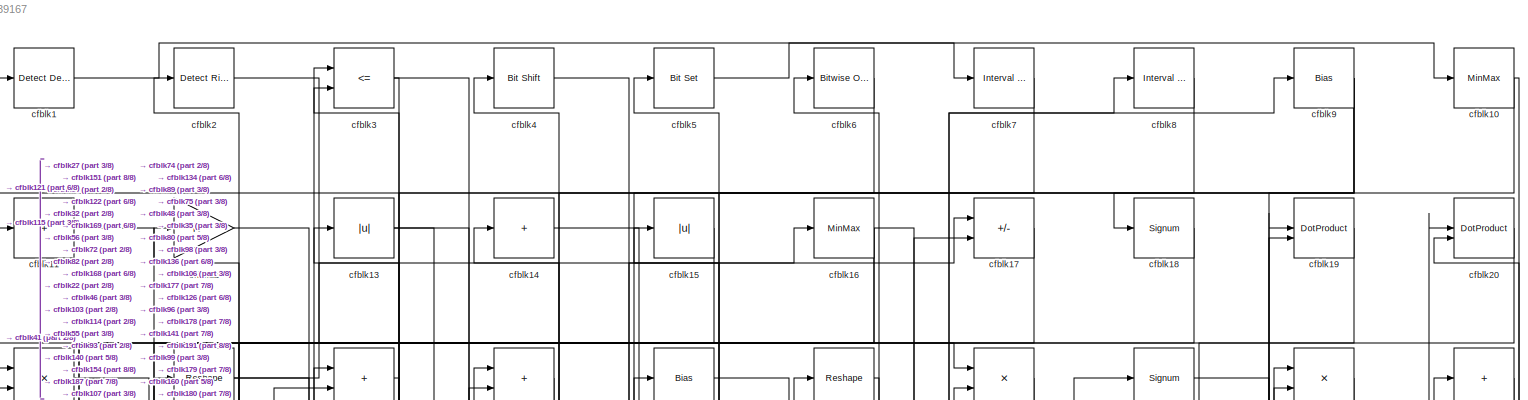
[diagram: root canvas - part 1/8, full width, top band]
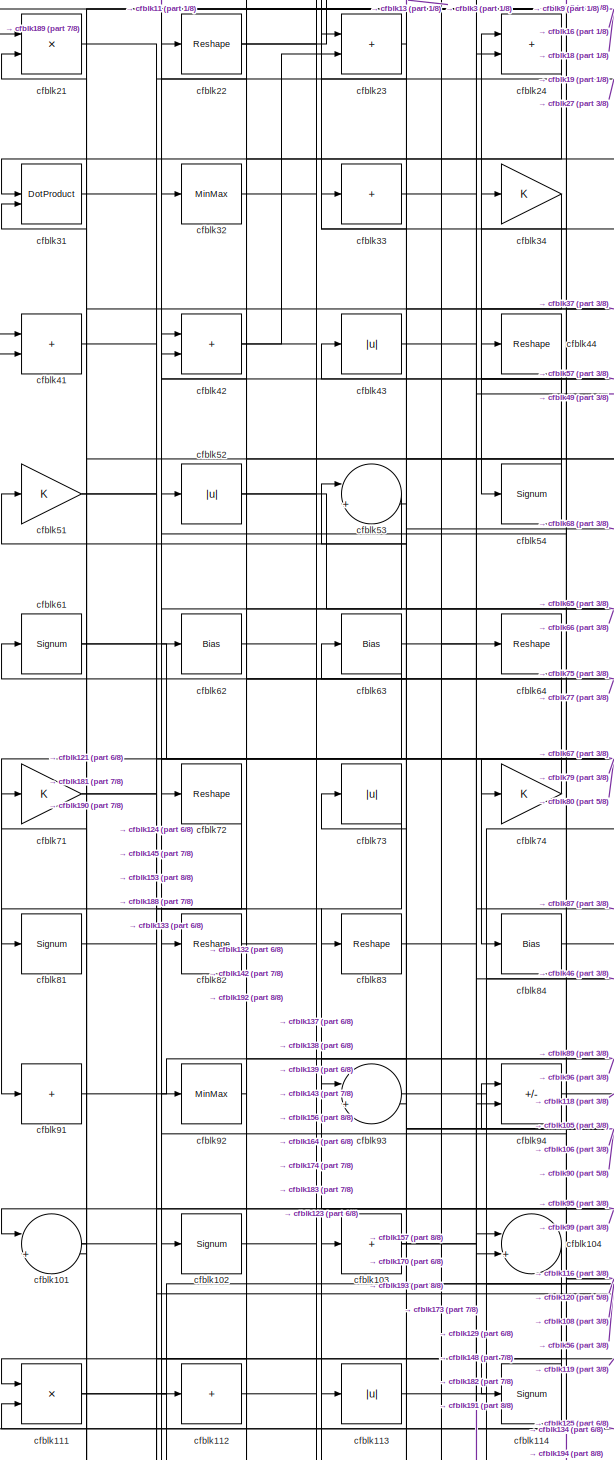
[diagram: root canvas - part 2/8, middle left region]
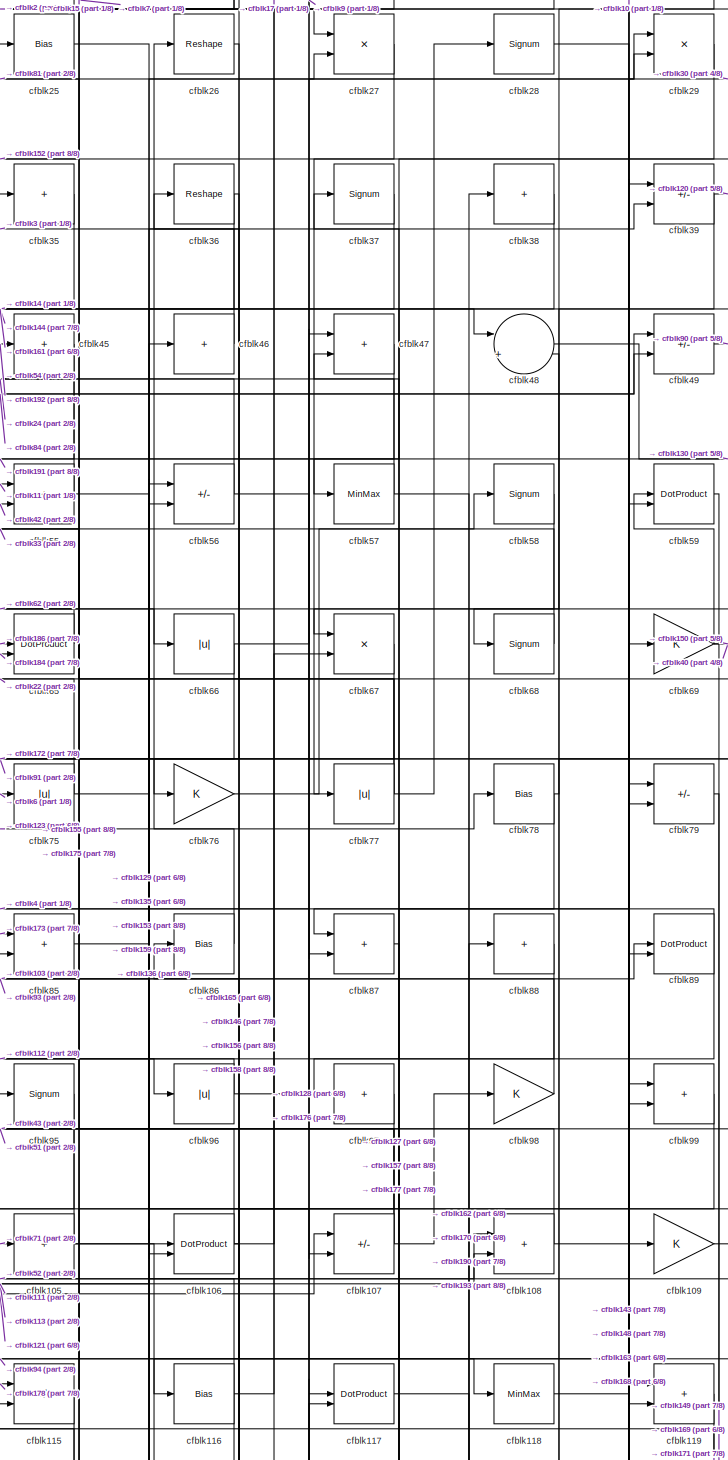
[diagram: root canvas - part 3/8, central region]
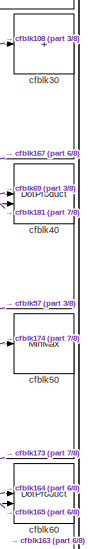
[diagram: root canvas - part 4/8, top right region]
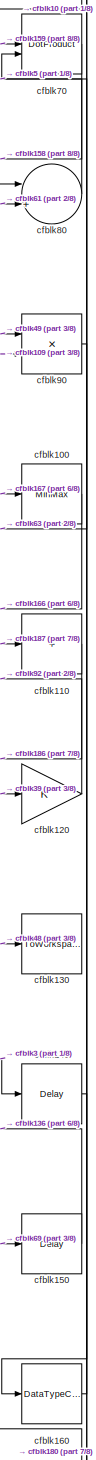
[diagram: root canvas - part 5/8, middle right region]
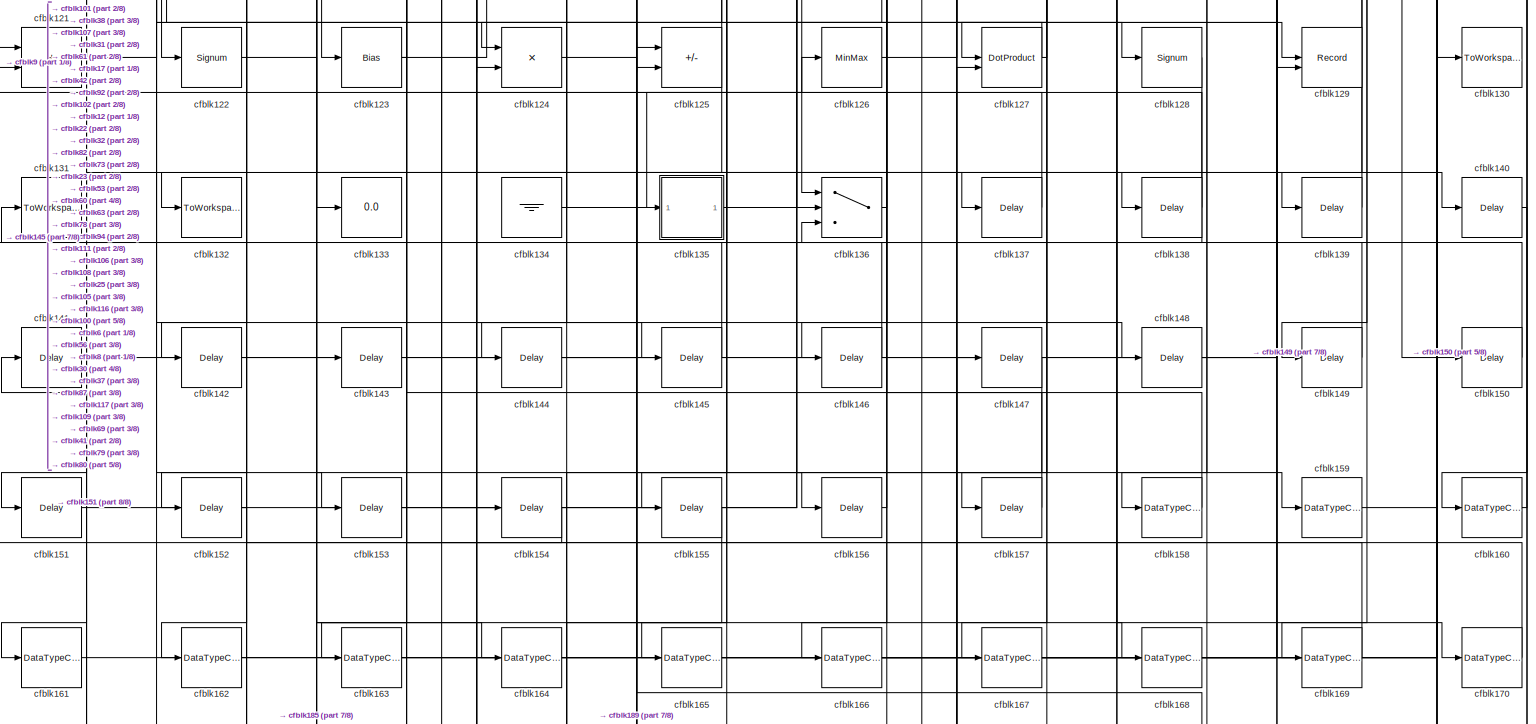
[diagram: root canvas - part 6/8, full width, bottom band]
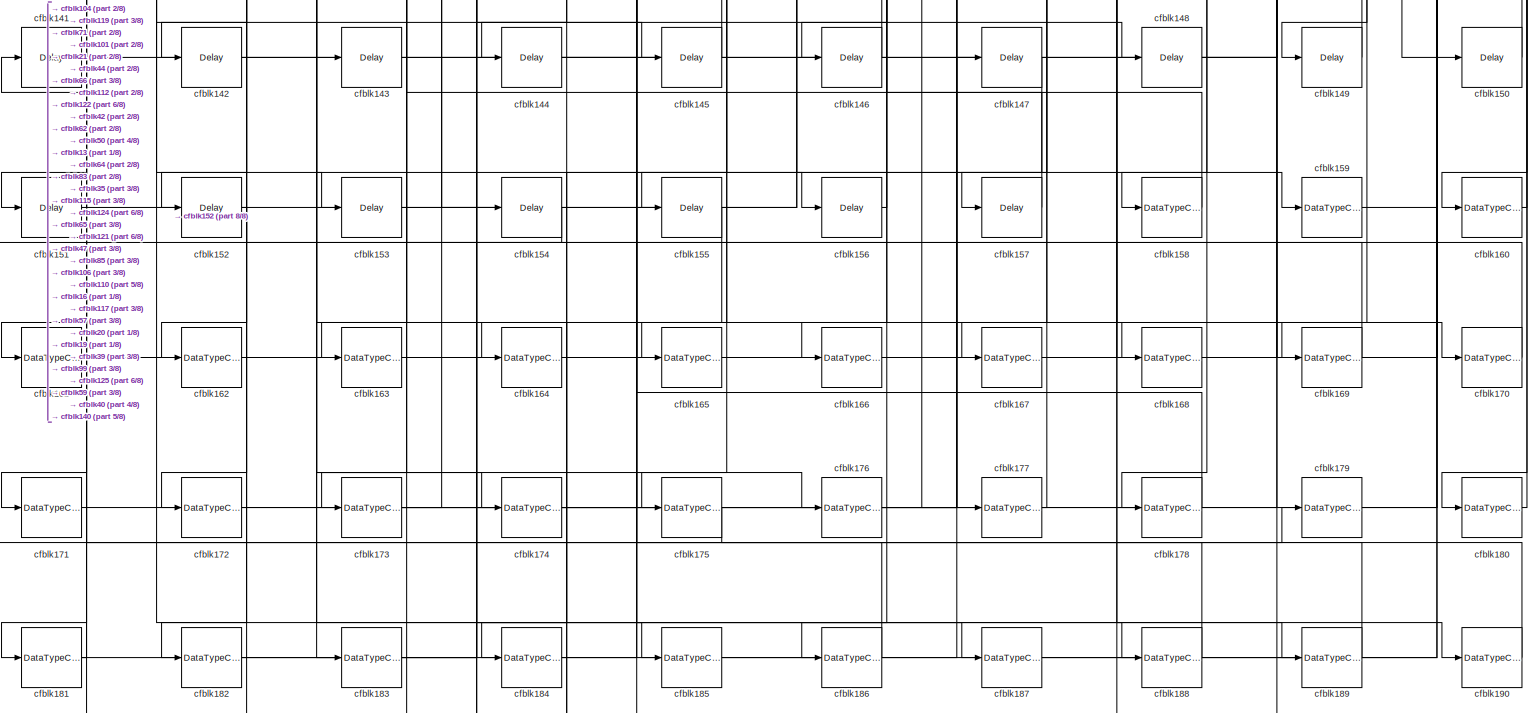
[diagram: root canvas - part 7/8, full width, bottom band]
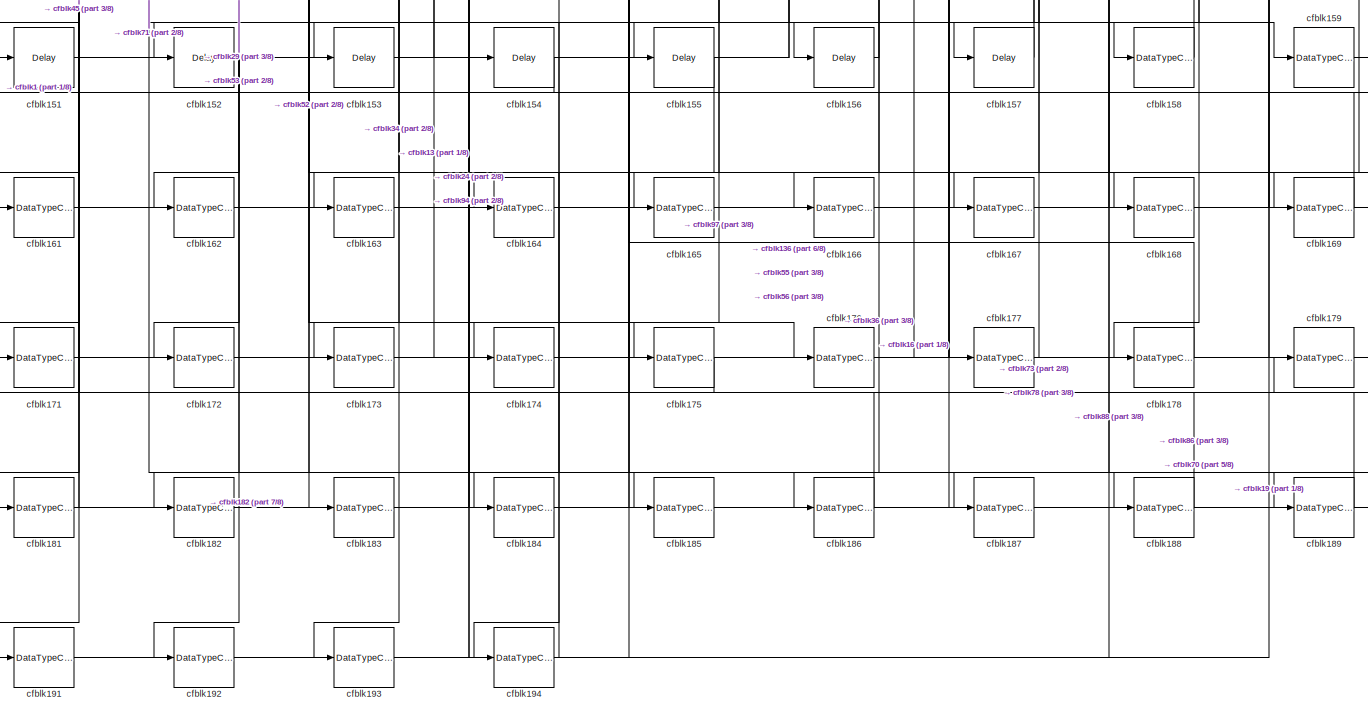
[diagram: root canvas - part 8/8, full width, bottom band]
MODEL slx_ba1e86439167
KIND model
CONFIG AbsTol = auto
CONFIG EnableMultiTasking = off
CONFIG FixedStep = auto
CONFIG MaxStep = auto
CONFIG MinStep = auto
CONFIG RelTol = 1e-3
CONFIG SampleTimeConstraint = Unconstrained
CONFIG SolverName = VariableStepAuto
CONFIG StartTime = 0.0
CONFIG StopTime = 10.0
BLOCK [Reference] cfblk1  REF=simulink/Logic and Bit
Operations/Detect
Decrease
  LibrarySourceBlock = hdlsllib/Logic and Bit\nOperations/Detect\nDecrease
  SourceBlock = simulink/Logic and Bit\nOperations/Detect\nDecrease
  SourceType = Detect Decrease
BLOCK [MinMax] cfblk10
BLOCK [MinMax] cfblk100
BLOCK [Sum] cfblk101
  Inputs = |++
BLOCK [Signum] cfblk102
BLOCK [Sum] cfblk103
  IconShape = rectangular
  Inputs = +
BLOCK [Sum] cfblk104
  Inputs = |++
BLOCK [Sum] cfblk105
  IconShape = rectangular
  Inputs = +
BLOCK [DotProduct] cfblk106
  OutDataTypeStr = Inherit: Inherit via internal rule
BLOCK [Sum] cfblk107
  IconShape = rectangular
  Inputs = +-
BLOCK [Sum] cfblk108
  IconShape = rectangular
BLOCK [Gain] cfblk109
BLOCK [Sum] cfblk11
  IconShape = rectangular
  Inputs = +
BLOCK [Sum] cfblk110
  IconShape = rectangular
  Inputs = +
BLOCK [Product] cfblk111
  Inputs = */
  RndMeth = Zero
  SaturateOnIntegerOverflow = on
BLOCK [Sum] cfblk112
  IconShape = rectangular
  Inputs = +
BLOCK [Abs] cfblk113
  SaturateOnIntegerOverflow = off
BLOCK [Signum] cfblk114
BLOCK [Sum] cfblk115
  IconShape = rectangular
  Inputs = +-
BLOCK [Bias] cfblk116
  Bias = 0.0
  SaturateOnIntegerOverflow = off
BLOCK [DotProduct] cfblk117
  OutDataTypeStr = Inherit: Inherit via internal rule
BLOCK [MinMax] cfblk118
BLOCK [Sum] cfblk119
  IconShape = rectangular
BLOCK [Gain] cfblk12
BLOCK [Gain] cfblk120
BLOCK [Sum] cfblk121
  IconShape = rectangular
BLOCK [Signum] cfblk122
BLOCK [Bias] cfblk123
  Bias = 0.0
  SaturateOnIntegerOverflow = off
BLOCK [Product] cfblk124
  Inputs = */
  RndMeth = Zero
  SaturateOnIntegerOverflow = on
BLOCK [Sum] cfblk125
  IconShape = rectangular
  Inputs = +-
BLOCK [MinMax] cfblk126
BLOCK [DotProduct] cfblk127
  OutDataTypeStr = Inherit: Inherit via internal rule
BLOCK [Signum] cfblk128
BLOCK [Record] cfblk129
  CompatibilityTag = XY
  FileSettingsInternal = {"entries":[{"content":{"excelSettings":{"content":{},"type":"Streamout.ExcelSettings"}},"type":"Streamout.FileSettingStorage","uuid":""}],"packageUris":["http:\/\/schema.mathworks.com\/mf0\/streamout_blocks\/R2020a"],"version":"1.0"}
  Layout = [1 1]
  SignalsInternal = {"entries":[{"content":{"signals":[{"content":{"blockPath":[],"dimensions":[1],"domain":"","lineColor":"#a2142f","plots":[1],"port":1,"signalID":4189,"signalName":"XY Graph:1"},"type":"RecordBlkView.Signal","uuid":""},{"content":{"blockPath":[],"dimensions":[1],"domain":"","lineColor":"#139fff","plots":[1],"port":2,"signalID":4192,"signalName":"XY Graph:2"},"type":"RecordBlkView.Signal","uuid":""}...<+146ch>
  VisualizationBindings = {"xyplotplugin":{"info":[{"series":[{"bindingParametersList":[{"parameter":"X-Axis","signalID":4189,"signalName":"XY Graph:1"},{"parameter":"Y-Axis","signalID":4192,"signalName":"XY Graph:2"}],"seriesID":31353}],"subplotID":1}]}}
  st = -1
BLOCK [Abs] cfblk13
  SaturateOnIntegerOverflow = off
BLOCK [ToWorkspace] cfblk130
  MaxDataPoints = inf
  SampleTime = -1
  SaveFormat = Timeseries
  VariableName = simout
BLOCK [ToWorkspace] cfblk131
  MaxDataPoints = inf
  SampleTime = -1
  SaveFormat = Timeseries
  VariableName = simout
BLOCK [ToWorkspace] cfblk132
  MaxDataPoints = inf
  SampleTime = -1
  SaveFormat = Timeseries
  VariableName = simout
BLOCK [Display] cfblk133
  Decimation = 1
BLOCK [Ground] cfblk134
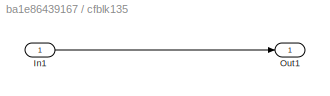
BLOCK [SubSystem] cfblk135
  LibrarySourceBlock = hdlsllib/Ports &\nSubsystems/Subsystem
BLOCK [Inport] cfblk135/In1
BLOCK [Outport] cfblk135/Out1
BLOCK [Switch] cfblk136
  InputSameDT = off
  SaturateOnIntegerOverflow = off
BLOCK [Delay] cfblk137
  InputPortMap = u0
  SampleTime = 1
BLOCK [Delay] cfblk138
  InputPortMap = u0
  SampleTime = 1
BLOCK [Delay] cfblk139
  InputPortMap = u0
  SampleTime = 1
BLOCK [Sum] cfblk14
  IconShape = rectangular
  Inputs = +
BLOCK [Delay] cfblk140
  InputPortMap = u0
  SampleTime = 1
BLOCK [Delay] cfblk141
  InputPortMap = u0
  SampleTime = 1
BLOCK [Delay] cfblk142
  InputPortMap = u0
  SampleTime = 1
BLOCK [Delay] cfblk143
  InputPortMap = u0
  SampleTime = 1
BLOCK [Delay] cfblk144
  InputPortMap = u0
  SampleTime = 1
BLOCK [Delay] cfblk145
  InputPortMap = u0
  SampleTime = 1
BLOCK [Delay] cfblk146
  InputPortMap = u0
  SampleTime = 1
BLOCK [Delay] cfblk147
  InputPortMap = u0
  SampleTime = 1
BLOCK [Delay] cfblk148
  InputPortMap = u0
  SampleTime = 1
BLOCK [Delay] cfblk149
  InputPortMap = u0
  SampleTime = 1
BLOCK [Abs] cfblk15
  SaturateOnIntegerOverflow = off
BLOCK [Delay] cfblk150
  InputPortMap = u0
  SampleTime = 1
BLOCK [Delay] cfblk151
  InputPortMap = u0
  SampleTime = 1
BLOCK [Delay] cfblk152
  InputPortMap = u0
  SampleTime = 1
BLOCK [Delay] cfblk153
  InputPortMap = u0
  SampleTime = 1
BLOCK [Delay] cfblk154
  InputPortMap = u0
  SampleTime = 1
BLOCK [Delay] cfblk155
  InputPortMap = u0
  SampleTime = 1
BLOCK [Delay] cfblk156
  InputPortMap = u0
  SampleTime = 1
BLOCK [Delay] cfblk157
  InputPortMap = u0
  SampleTime = 1
BLOCK [DataTypeConversion] cfblk158
  OutDataTypeStr = uint8
  RndMeth = Floor
  SaturateOnIntegerOverflow = off
BLOCK [DataTypeConversion] cfblk159
  OutDataTypeStr = uint8
  RndMeth = Floor
  SaturateOnIntegerOverflow = off
BLOCK [MinMax] cfblk16
BLOCK [DataTypeConversion] cfblk160
  OutDataTypeStr = uint8
  RndMeth = Floor
  SaturateOnIntegerOverflow = off
BLOCK [DataTypeConversion] cfblk161
  OutDataTypeStr = uint8
  RndMeth = Floor
  SaturateOnIntegerOverflow = off
BLOCK [DataTypeConversion] cfblk162
  OutDataTypeStr = uint8
  RndMeth = Floor
  SaturateOnIntegerOverflow = off
BLOCK [DataTypeConversion] cfblk163
  OutDataTypeStr = uint8
  RndMeth = Floor
  SaturateOnIntegerOverflow = off
BLOCK [DataTypeConversion] cfblk164
  OutDataTypeStr = uint8
  RndMeth = Floor
  SaturateOnIntegerOverflow = off
BLOCK [DataTypeConversion] cfblk165
  OutDataTypeStr = uint8
  RndMeth = Floor
  SaturateOnIntegerOverflow = off
BLOCK [DataTypeConversion] cfblk166
  RndMeth = Floor
  SaturateOnIntegerOverflow = off
BLOCK [DataTypeConversion] cfblk167
  OutDataTypeStr = uint8
  RndMeth = Floor
  SaturateOnIntegerOverflow = off
BLOCK [DataTypeConversion] cfblk168
  OutDataTypeStr = uint8
  RndMeth = Floor
  SaturateOnIntegerOverflow = off
BLOCK [DataTypeConversion] cfblk169
  OutDataTypeStr = uint8
  RndMeth = Floor
  SaturateOnIntegerOverflow = off
BLOCK [Sum] cfblk17
  IconShape = rectangular
  Inputs = +-
BLOCK [DataTypeConversion] cfblk170
  OutDataTypeStr = uint8
  RndMeth = Floor
  SaturateOnIntegerOverflow = off
BLOCK [DataTypeConversion] cfblk171
  OutDataTypeStr = uint8
  RndMeth = Floor
  SaturateOnIntegerOverflow = off
BLOCK [DataTypeConversion] cfblk172
  OutDataTypeStr = uint8
  RndMeth = Floor
  SaturateOnIntegerOverflow = off
BLOCK [DataTypeConversion] cfblk173
  RndMeth = Floor
  SaturateOnIntegerOverflow = off
BLOCK [DataTypeConversion] cfblk174
  OutDataTypeStr = uint8
  RndMeth = Floor
  SaturateOnIntegerOverflow = off
BLOCK [DataTypeConversion] cfblk175
  OutDataTypeStr = uint8
  RndMeth = Floor
  SaturateOnIntegerOverflow = off
BLOCK [DataTypeConversion] cfblk176
  OutDataTypeStr = uint8
  RndMeth = Floor
  SaturateOnIntegerOverflow = off
BLOCK [DataTypeConversion] cfblk177
  OutDataTypeStr = uint8
  RndMeth = Floor
  SaturateOnIntegerOverflow = off
BLOCK [DataTypeConversion] cfblk178
  OutDataTypeStr = uint8
  RndMeth = Floor
  SaturateOnIntegerOverflow = off
BLOCK [DataTypeConversion] cfblk179
  OutDataTypeStr = uint8
  RndMeth = Floor
  SaturateOnIntegerOverflow = off
BLOCK [Signum] cfblk18
BLOCK [DataTypeConversion] cfblk180
  OutDataTypeStr = uint8
  RndMeth = Floor
  SaturateOnIntegerOverflow = off
BLOCK [DataTypeConversion] cfblk181
  RndMeth = Floor
  SaturateOnIntegerOverflow = off
BLOCK [DataTypeConversion] cfblk182
  OutDataTypeStr = uint8
  RndMeth = Floor
  SaturateOnIntegerOverflow = off
BLOCK [DataTypeConversion] cfblk183
  OutDataTypeStr = uint8
  RndMeth = Floor
  SaturateOnIntegerOverflow = off
BLOCK [DataTypeConversion] cfblk184
  OutDataTypeStr = uint8
  RndMeth = Floor
  SaturateOnIntegerOverflow = off
BLOCK [DataTypeConversion] cfblk185
  OutDataTypeStr = uint8
  RndMeth = Floor
  SaturateOnIntegerOverflow = off
BLOCK [DataTypeConversion] cfblk186
  OutDataTypeStr = uint8
  RndMeth = Floor
  SaturateOnIntegerOverflow = off
BLOCK [DataTypeConversion] cfblk187
  OutDataTypeStr = uint8
  RndMeth = Floor
  SaturateOnIntegerOverflow = off
BLOCK [DataTypeConversion] cfblk188
  OutDataTypeStr = uint8
  RndMeth = Floor
  SaturateOnIntegerOverflow = off
BLOCK [DataTypeConversion] cfblk189
  OutDataTypeStr = uint8
  RndMeth = Floor
  SaturateOnIntegerOverflow = off
BLOCK [DotProduct] cfblk19
  OutDataTypeStr = Inherit: Inherit via internal rule
BLOCK [DataTypeConversion] cfblk190
  OutDataTypeStr = uint8
  RndMeth = Floor
  SaturateOnIntegerOverflow = off
BLOCK [DataTypeConversion] cfblk191
  RndMeth = Floor
  SaturateOnIntegerOverflow = off
BLOCK [DataTypeConversion] cfblk192
  OutDataTypeStr = uint8
  RndMeth = Floor
  SaturateOnIntegerOverflow = off
BLOCK [DataTypeConversion] cfblk193
  RndMeth = Floor
  SaturateOnIntegerOverflow = off
BLOCK [DataTypeConversion] cfblk194
  OutDataTypeStr = uint8
  RndMeth = Floor
  SaturateOnIntegerOverflow = off
BLOCK [Reference] cfblk2  REF=hdlsllib/Logic and Bit
Operations/Detect Rise
Nonnegative
  SourceBlock = hdlsllib/Logic and Bit\nOperations/Detect Rise\nNonnegative
  SourceType = Detect Rise Nonnegative
BLOCK [DotProduct] cfblk20
  OutDataTypeStr = Inherit: Inherit via internal rule
BLOCK [Product] cfblk21
  Inputs = */
  RndMeth = Zero
  SaturateOnIntegerOverflow = on
BLOCK [Reshape] cfblk22
BLOCK [Sum] cfblk23
  IconShape = rectangular
BLOCK [Sum] cfblk24
  IconShape = rectangular
BLOCK [Bias] cfblk25
  Bias = 0.0
  SaturateOnIntegerOverflow = off
BLOCK [Reshape] cfblk26
BLOCK [Product] cfblk27
  Inputs = */
  RndMeth = Zero
  SaturateOnIntegerOverflow = on
BLOCK [Signum] cfblk28
BLOCK [Product] cfblk29
  Inputs = */
  RndMeth = Zero
  SaturateOnIntegerOverflow = on
BLOCK [RelationalOperator] cfblk3
  InputSameDT = off
  Operator = <=
  OutDataTypeStr = boolean
BLOCK [Sum] cfblk30
  IconShape = rectangular
  Inputs = +
BLOCK [DotProduct] cfblk31
  OutDataTypeStr = Inherit: Inherit via internal rule
BLOCK [MinMax] cfblk32
BLOCK [Sum] cfblk33
  IconShape = rectangular
  Inputs = +
BLOCK [Gain] cfblk34
BLOCK [Sum] cfblk35
  IconShape = rectangular
  Inputs = +
BLOCK [Reshape] cfblk36
BLOCK [Signum] cfblk37
BLOCK [Sum] cfblk38
  IconShape = rectangular
  Inputs = +
BLOCK [Sum] cfblk39
  IconShape = rectangular
  Inputs = +-
BLOCK [Reference] cfblk4  REF=hdlsllib/Logic and Bit
Operations/Bit Shift
  SourceBlock = hdlsllib/Logic and Bit\nOperations/Bit Shift
  SourceType = Bit Shift
BLOCK [DotProduct] cfblk40
  OutDataTypeStr = Inherit: Inherit via internal rule
BLOCK [Sum] cfblk41
  IconShape = rectangular
BLOCK [Sum] cfblk42
  IconShape = rectangular
BLOCK [Abs] cfblk43
  SaturateOnIntegerOverflow = off
BLOCK [Reshape] cfblk44
BLOCK [Sum] cfblk45
  IconShape = rectangular
  Inputs = +
BLOCK [Sum] cfblk46
  IconShape = rectangular
  Inputs = +
BLOCK [Sum] cfblk47
  IconShape = rectangular
BLOCK [Sum] cfblk48
  Inputs = |++
BLOCK [Sum] cfblk49
  IconShape = rectangular
  Inputs = +-
BLOCK [Reference] cfblk5  REF=simulink/Logic and Bit
Operations/Bit Set
  LibrarySourceBlock = hdlsllib/Logic and Bit\nOperations/Bit Set
  SourceBlock = simulink/Logic and Bit\nOperations/Bit Set
  SourceType = Bit Set
BLOCK [MinMax] cfblk50
BLOCK [Gain] cfblk51
BLOCK [Abs] cfblk52
  SaturateOnIntegerOverflow = off
BLOCK [Sum] cfblk53
  Inputs = |++
BLOCK [Signum] cfblk54
BLOCK [Sum] cfblk55
  IconShape = rectangular
BLOCK [Sum] cfblk56
  IconShape = rectangular
  Inputs = +-
BLOCK [MinMax] cfblk57
BLOCK [Signum] cfblk58
BLOCK [DotProduct] cfblk59
  OutDataTypeStr = Inherit: Inherit via internal rule
BLOCK [Reference] cfblk6  REF=simulink/Logic and Bit
Operations/Bitwise
Operator
  LibrarySourceBlock = hdlsllib/Logic and Bit\nOperations/Bitwise\nOperator
  SourceBlock = simulink/Logic and Bit\nOperations/Bitwise\nOperator
  SourceType = Bitwise Operator
BLOCK [DotProduct] cfblk60
  OutDataTypeStr = Inherit: Inherit via internal rule
BLOCK [Signum] cfblk61
BLOCK [Bias] cfblk62
  Bias = 0.0
  SaturateOnIntegerOverflow = off
BLOCK [Bias] cfblk63
  Bias = 0.0
  SaturateOnIntegerOverflow = off
BLOCK [Reshape] cfblk64
BLOCK [DotProduct] cfblk65
  OutDataTypeStr = Inherit: Inherit via internal rule
BLOCK [Abs] cfblk66
  SaturateOnIntegerOverflow = off
BLOCK [Product] cfblk67
  Inputs = */
  RndMeth = Zero
  SaturateOnIntegerOverflow = on
BLOCK [Signum] cfblk68
BLOCK [Gain] cfblk69
BLOCK [Reference] cfblk7  REF=hdlsllib/Logic and Bit
Operations/Interval Test
  SourceBlock = hdlsllib/Logic and Bit\nOperations/Interval Test
  SourceType = Interval Test
BLOCK [DotProduct] cfblk70
  OutDataTypeStr = Inherit: Inherit via internal rule
BLOCK [Gain] cfblk71
BLOCK [Reshape] cfblk72
BLOCK [Abs] cfblk73
  SaturateOnIntegerOverflow = off
BLOCK [Gain] cfblk74
BLOCK [Abs] cfblk75
  SaturateOnIntegerOverflow = off
BLOCK [Gain] cfblk76
BLOCK [Abs] cfblk77
  SaturateOnIntegerOverflow = off
BLOCK [Bias] cfblk78
  Bias = 0.0
  SaturateOnIntegerOverflow = off
BLOCK [Sum] cfblk79
  IconShape = rectangular
  Inputs = +-
BLOCK [Reference] cfblk8  REF=hdlsllib/Logic and Bit
Operations/Interval Test
  SourceBlock = hdlsllib/Logic and Bit\nOperations/Interval Test
  SourceType = Interval Test
BLOCK [Sum] cfblk80
  Inputs = |++
BLOCK [Signum] cfblk81
BLOCK [Reshape] cfblk82
BLOCK [Reshape] cfblk83
BLOCK [Bias] cfblk84
  Bias = 0.0
  SaturateOnIntegerOverflow = off
BLOCK [Sum] cfblk85
  IconShape = rectangular
BLOCK [Bias] cfblk86
  Bias = 0.0
  SaturateOnIntegerOverflow = off
BLOCK [Sum] cfblk87
  IconShape = rectangular
BLOCK [Sum] cfblk88
  IconShape = rectangular
  Inputs = +
BLOCK [DotProduct] cfblk89
  OutDataTypeStr = Inherit: Inherit via internal rule
BLOCK [Bias] cfblk9
  Bias = 0.0
  SaturateOnIntegerOverflow = off
BLOCK [Product] cfblk90
  Inputs = */
  RndMeth = Zero
  SaturateOnIntegerOverflow = on
BLOCK [Sum] cfblk91
  IconShape = rectangular
  Inputs = +
BLOCK [MinMax] cfblk92
BLOCK [Sum] cfblk93
  Inputs = |++
BLOCK [Sum] cfblk94
  IconShape = rectangular
  Inputs = +-
BLOCK [Signum] cfblk95
BLOCK [Abs] cfblk96
  SaturateOnIntegerOverflow = off
BLOCK [Sum] cfblk97
  IconShape = rectangular
  Inputs = +
BLOCK [Gain] cfblk98
BLOCK [Sum] cfblk99
  IconShape = rectangular
LINE cfblk100:1 -> cfblk166:1
NET cfblk101:1 -> cfblk145:1, cfblk31:2
LINE cfblk102:1 -> cfblk139:1
NET cfblk103:1 -> cfblk49:2, cfblk89:1
LINE cfblk104:1 -> cfblk181:1
NET cfblk105:1 -> cfblk136:1, cfblk29:1, cfblk43:1
NET cfblk106:1 -> cfblk146:1, cfblk17:2, cfblk51:1
NET cfblk107:1 -> cfblk14:1, cfblk4:1, cfblk98:1
NET cfblk108:1 -> cfblk25:1, cfblk30:1
LINE cfblk109:1 -> cfblk90:2
NET cfblk10:1 -> cfblk160:1, cfblk99:2
LINE cfblk110:1 -> cfblk186:1
NET cfblk111:1 -> cfblk108:1, cfblk133:1
LINE cfblk112:1 -> cfblk143:1
LINE cfblk113:1 -> cfblk56:1
LINE cfblk114:1 -> cfblk13:1
NET cfblk115:1 -> cfblk11:1, cfblk55:1
NET cfblk116:1 -> cfblk165:1, cfblk52:1, cfblk67:2
LINE cfblk117:1 -> cfblk170:1
LINE cfblk118:1 -> cfblk79:1
LINE cfblk119:1 -> cfblk171:1
LINE cfblk11:1 -> cfblk32:1
LINE cfblk120:1 -> cfblk92:1
NET cfblk121:1 -> cfblk101:2, cfblk107:1
LINE cfblk122:1 -> cfblk185:1
NET cfblk123:1 -> cfblk23:1, cfblk78:1
LINE cfblk124:1 -> cfblk189:1
NET cfblk125:1 -> cfblk111:2, cfblk162:1
LINE cfblk126:1 -> cfblk8:1
NET cfblk127:1 -> cfblk124:1, cfblk37:1
LINE cfblk128:1 -> cfblk131:1
LINE cfblk12:1 -> cfblk168:1
NET cfblk134:1 -> cfblk126:1, cfblk17:1, cfblk94:1
LINE cfblk135/In1:1 -> cfblk135/Out1:1
NET cfblk135:1 -> cfblk106:1, cfblk108:2
LINE cfblk136:1 -> cfblk6:1
LINE cfblk137:1 -> cfblk42:2
LINE cfblk138:1 -> cfblk53:2
LINE cfblk139:1 -> cfblk41:1
NET cfblk13:1 -> cfblk154:1, cfblk187:1
LINE cfblk140:1 -> cfblk180:1
LINE cfblk141:1 -> cfblk19:1
LINE cfblk142:1 -> cfblk176:1
LINE cfblk143:1 -> cfblk39:1
LINE cfblk144:1 -> cfblk115:2
LINE cfblk145:1 -> cfblk121:1
LINE cfblk146:1 -> cfblk85:2
LINE cfblk147:1 -> cfblk184:1
LINE cfblk148:1 -> cfblk99:1
LINE cfblk149:1 -> cfblk125:1
LINE cfblk14:1 -> cfblk48:1
LINE cfblk150:1 -> cfblk136:3
LINE cfblk151:1 -> cfblk136:2
LINE cfblk152:1 -> cfblk182:1
LINE cfblk153:1 -> cfblk56:2
LINE cfblk154:1 -> cfblk1:1
LINE cfblk155:1 -> cfblk194:1
LINE cfblk156:1 -> cfblk36:1
LINE cfblk157:1 -> cfblk73:1
LINE cfblk158:1 -> cfblk86:1
LINE cfblk159:1 -> cfblk70:1
LINE cfblk15:1 -> cfblk72:1
LINE cfblk160:1 -> cfblk70:2
LINE cfblk161:1 -> cfblk135:1
LINE cfblk162:1 -> cfblk38:1
LINE cfblk163:1 -> cfblk109:1
LINE cfblk164:1 -> cfblk60:1
LINE cfblk165:1 -> cfblk60:2
NET cfblk166:1 -> cfblk127:2, cfblk80:1
LINE cfblk167:1 -> cfblk100:1
LINE cfblk168:1 -> cfblk69:1
LINE cfblk169:1 -> cfblk12:1
NET cfblk16:1 -> cfblk151:1, cfblk177:1, cfblk82:1
LINE cfblk170:1 -> cfblk53:1
LINE cfblk171:1 -> cfblk117:1
LINE cfblk172:1 -> cfblk117:2
NET cfblk173:1 -> cfblk59:2, cfblk64:1, cfblk85:1
LINE cfblk174:1 -> cfblk50:1
LINE cfblk175:1 -> cfblk179:1
LINE cfblk176:1 -> cfblk47:1
LINE cfblk177:1 -> cfblk47:2
LINE cfblk178:1 -> cfblk115:1
LINE cfblk179:1 -> cfblk20:1
LINE cfblk17:1 -> cfblk122:1
LINE cfblk180:1 -> cfblk20:2
NET cfblk181:1 -> cfblk40:2, cfblk71:1
LINE cfblk182:1 -> cfblk104:1
LINE cfblk183:1 -> cfblk104:2
LINE cfblk184:1 -> cfblk65:2
LINE cfblk185:1 -> cfblk147:1
LINE cfblk186:1 -> cfblk65:1
LINE cfblk187:1 -> cfblk110:1
LINE cfblk188:1 -> cfblk141:1
LINE cfblk189:1 -> cfblk21:1
LINE cfblk18:1 -> cfblk81:1
LINE cfblk190:1 -> cfblk21:2
NET cfblk191:1 -> cfblk19:2, cfblk94:2
LINE cfblk192:1 -> cfblk45:1
NET cfblk193:1 -> cfblk24:2, cfblk88:1
LINE cfblk194:1 -> cfblk34:1
LINE cfblk19:1 -> cfblk41:2
LINE cfblk1:1 -> cfblk10:1
LINE cfblk20:1 -> cfblk178:1
LINE cfblk21:1 -> cfblk188:1
NET cfblk22:1 -> cfblk137:1, cfblk16:1
LINE cfblk23:1 -> cfblk93:1
LINE cfblk24:1 -> cfblk31:1
LINE cfblk25:1 -> cfblk129:1
LINE cfblk26:1 -> cfblk76:1
LINE cfblk27:1 -> cfblk77:1
LINE cfblk28:1 -> cfblk119:1
LINE cfblk29:1 -> cfblk152:1
LINE cfblk2:1 -> cfblk27:1
LINE cfblk30:1 -> cfblk167:1
LINE cfblk31:1 -> cfblk124:2
LINE cfblk32:1 -> cfblk164:1
LINE cfblk33:1 -> cfblk119:2
LINE cfblk34:1 -> cfblk193:1
LINE cfblk35:1 -> cfblk144:1
NET cfblk36:1 -> cfblk106:2, cfblk116:1
LINE cfblk37:1 -> cfblk54:1
LINE cfblk38:1 -> cfblk161:1
NET cfblk39:1 -> cfblk120:1, cfblk68:1
NET cfblk3:1 -> cfblk103:1, cfblk140:1
LINE cfblk40:1 -> cfblk57:1
LINE cfblk41:1 -> cfblk114:1
NET cfblk42:1 -> cfblk174:1, cfblk23:2
LINE cfblk43:1 -> cfblk87:2
LINE cfblk44:1 -> cfblk142:1
LINE cfblk45:1 -> cfblk191:1
LINE cfblk46:1 -> cfblk3:1
LINE cfblk47:1 -> cfblk175:1
LINE cfblk48:1 -> cfblk130:1
LINE cfblk49:1 -> cfblk90:1
LINE cfblk4:1 -> cfblk89:2
LINE cfblk50:1 -> cfblk173:1
NET cfblk51:1 -> cfblk79:2, cfblk83:1
NET cfblk52:1 -> cfblk156:1, cfblk66:1
LINE cfblk53:1 -> cfblk192:1
LINE cfblk54:1 -> cfblk44:1
NET cfblk55:1 -> cfblk159:1, cfblk3:2
NET cfblk56:1 -> cfblk128:1, cfblk2:1
NET cfblk57:1 -> cfblk190:1, cfblk24:1
LINE cfblk58:1 -> cfblk67:1
LINE cfblk59:1 -> cfblk149:1
LINE cfblk5:1 -> cfblk7:1
LINE cfblk60:1 -> cfblk163:1
NET cfblk61:1 -> cfblk125:2, cfblk80:2
LINE cfblk62:1 -> cfblk183:1
NET cfblk63:1 -> cfblk102:1, cfblk129:2
LINE cfblk64:1 -> cfblk84:1
LINE cfblk65:1 -> cfblk62:1
NET cfblk66:1 -> cfblk172:1, cfblk29:2
LINE cfblk67:1 -> cfblk91:1
LINE cfblk68:1 -> cfblk33:1
NET cfblk69:1 -> cfblk150:1, cfblk40:1, cfblk59:1
LINE cfblk6:1 -> cfblk75:1
LINE cfblk70:1 -> cfblk158:1
NET cfblk71:1 -> cfblk105:1, cfblk153:1
LINE cfblk72:1 -> cfblk101:1
LINE cfblk73:1 -> cfblk123:1
LINE cfblk74:1 -> cfblk61:1
NET cfblk75:1 -> cfblk107:2, cfblk22:1
LINE cfblk76:1 -> cfblk58:1
NET cfblk77:1 -> cfblk28:1, cfblk42:1, cfblk55:2
NET cfblk78:1 -> cfblk157:1, cfblk48:2
LINE cfblk79:1 -> cfblk169:1
LINE cfblk7:1 -> cfblk35:1
LINE cfblk80:1 -> cfblk5:1
LINE cfblk81:1 -> cfblk27:2
LINE cfblk82:1 -> cfblk138:1
LINE cfblk83:1 -> cfblk148:1
LINE cfblk84:1 -> cfblk49:1
LINE cfblk85:1 -> cfblk39:2
LINE cfblk86:1 -> cfblk26:1
LINE cfblk87:1 -> cfblk127:1
LINE cfblk88:1 -> cfblk97:1
NET cfblk89:1 -> cfblk112:1, cfblk87:1
LINE cfblk8:1 -> cfblk18:1
LINE cfblk90:1 -> cfblk63:1
LINE cfblk91:1 -> cfblk96:1
LINE cfblk92:1 -> cfblk132:1
LINE cfblk93:1 -> cfblk46:1
LINE cfblk94:1 -> cfblk118:1
LINE cfblk95:1 -> cfblk111:1
NET cfblk96:1 -> cfblk95:1, cfblk9:1
LINE cfblk97:1 -> cfblk155:1
LINE cfblk98:1 -> cfblk15:1
LINE cfblk99:1 -> cfblk113:1
NET cfblk9:1 -> cfblk121:2, cfblk74:1, cfblk93:2
note: NET lines group one-source signal fan-out (src -> all destinations, sorted); 1:1 wires keep LINE
